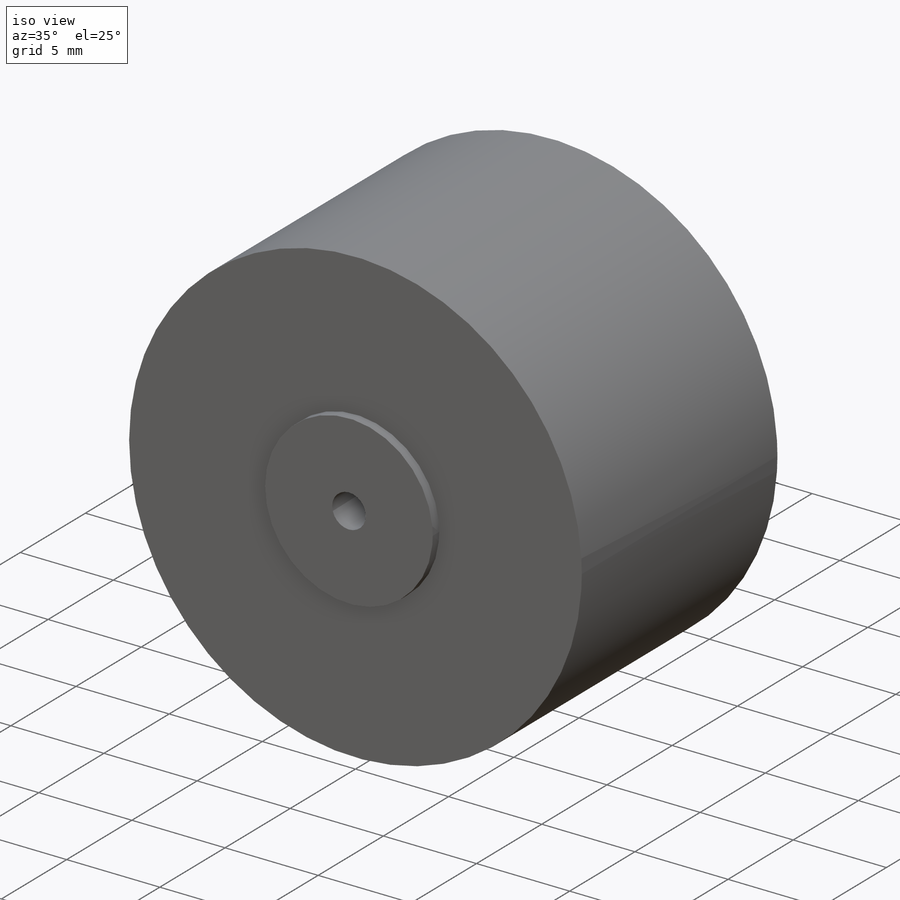
[diagram: iso view]
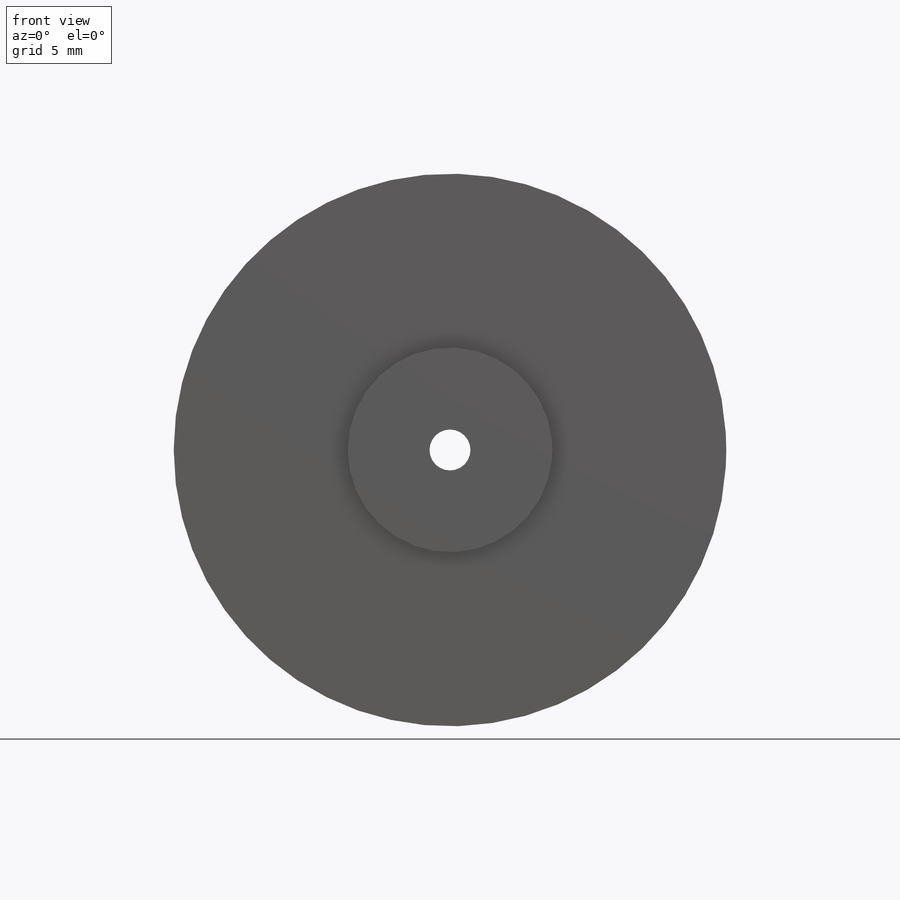
[diagram: front view]
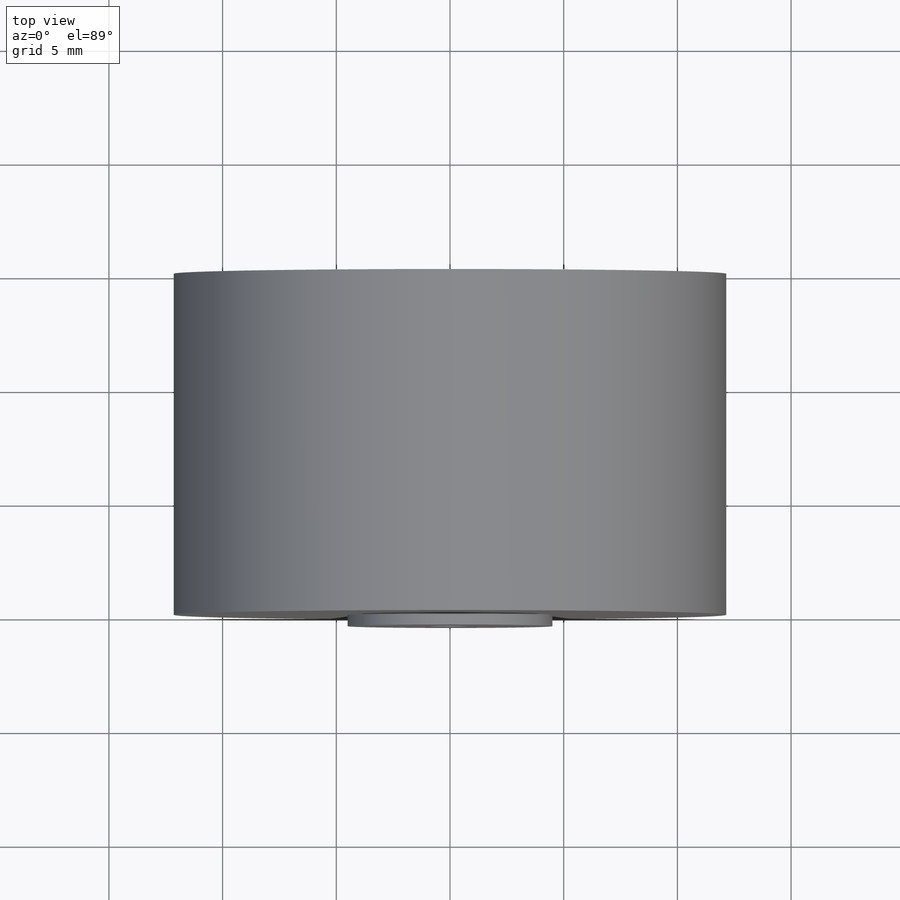
[diagram: top view]
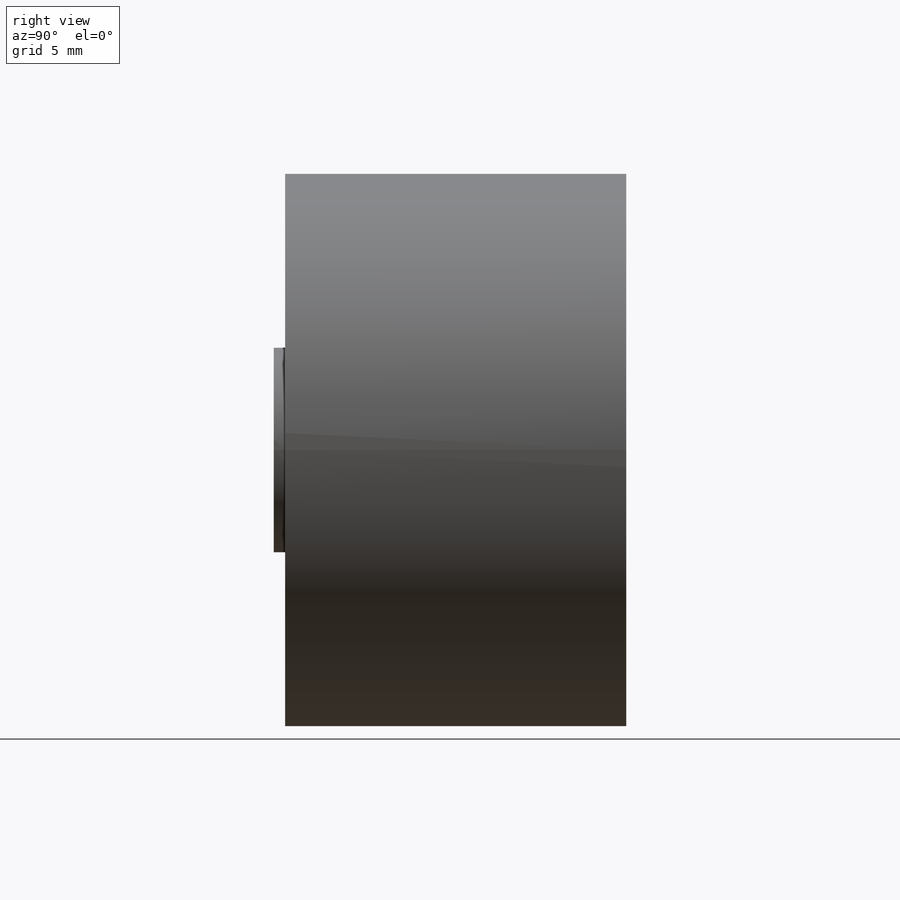
[diagram: right view]
SOLIDWORKS PART (.sldprt)
format: sldprt  version: not decoded by parser v0  size: 229,376 bytes
history: native  units: mm
features: plane x3, sketch x3, extrude x2, material x1, cut_extrude x1 (+10 scaffold rows collapsed)
feature tree (20):
  scaffold x10  (default folders/planes/origin — collapsed)
  material  "Material <não especificado>"
  plane  "Plano frontal"
  plane  "Plano superior"
  plane  "Plano direito"
  sketch  "Esboço1"  dims[D1=24.3mm]
  extrude  "Ressalto-extrusão1"  Depth=15mm
  sketch  "Esboço2"  dims[D1=9.0mm]
  extrude  "Ressalto-extrusão2"  Depth=15.5mm
  sketch  "Esboço3"  dims[D1=1.8mm]
  cut_extrude  "Corte-extrusão1"  Depth=15.5mm
decode coverage: 6 of 6 modeling features carry decoded parameters
note: suppression state not decoded; provenance and decode notes live in map.json
